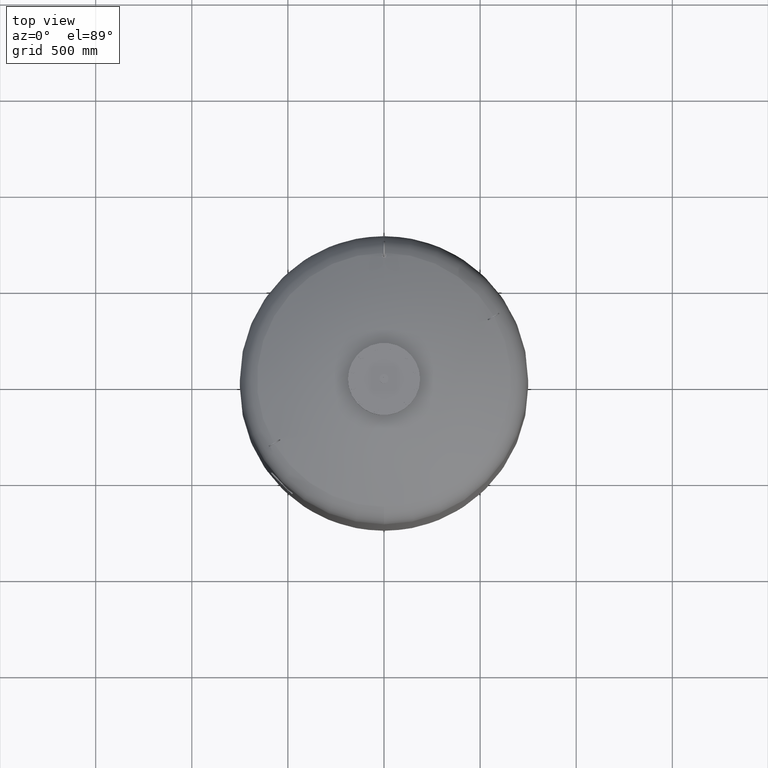
[diagram: clean part render]
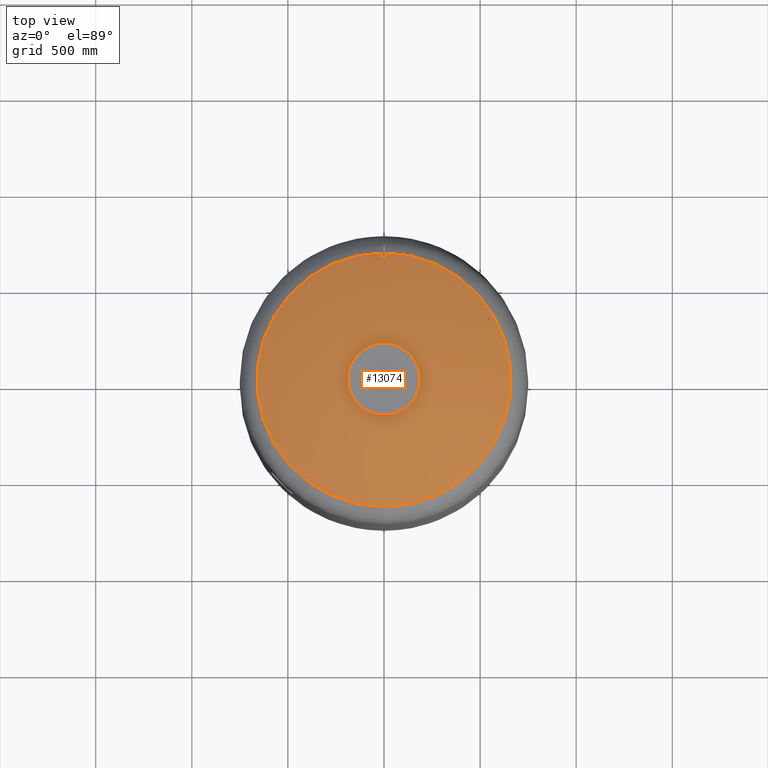
[diagram: same view with one face highlighted and labeled with its STEP entity id]
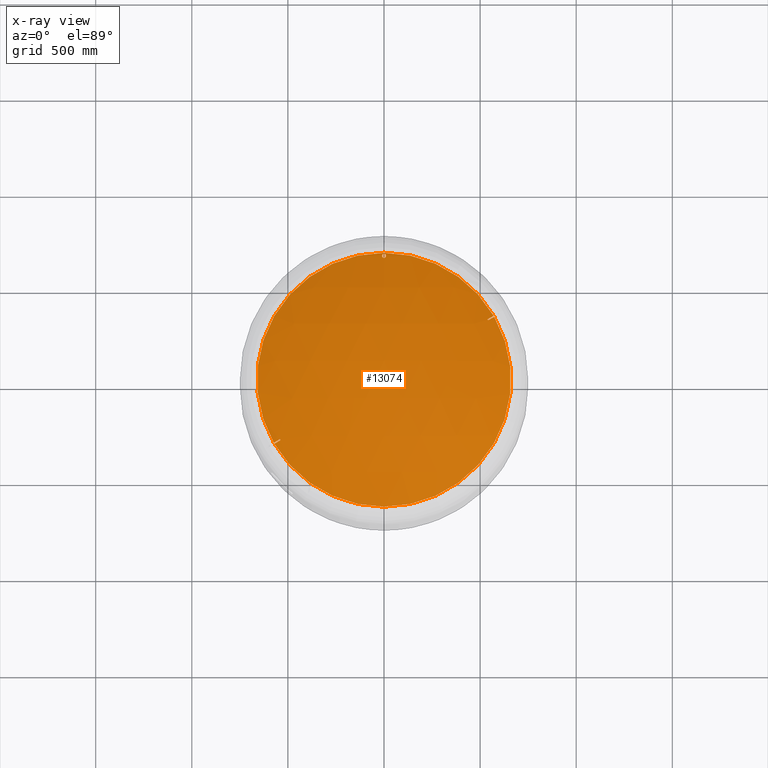
[diagram: x-ray of the same camera — body ghosted, the highlighted face saturated]
A machine part, top view. The second image highlights one B-rep face of the part: STEP entity #13074.
The next image is the same camera in x-ray: the body ghosted, the highlighted face saturated — about 0% of this face is hidden behind the body in this view.
In plain terms, the highlighted spherical surface has radius 1509 mm.
Its self-contained STEP definition (entity closure, byte-faithful):
#12338=CARTESIAN_POINT('',(2.782883E-014,-660.606666666666800,2822.716562866229200));
#12339=VERTEX_POINT('',#12338);
#12355=CARTESIAN_POINT('',(1.087271E-013,660.606666666666800,2822.716562866229200));
#12356=VERTEX_POINT('',#12355);
#12364=CARTESIAN_POINT('',(570.596255916202270,332.898003566943030,2822.716562866229200));
#12365=VERTEX_POINT('',#12364);
#12366=CARTESIAN_POINT('',(7.530601E-015,-2.797401E-014,2822.716562866229200));
#12367=DIRECTION('',(0.0,0.0,-1.0));
#12368=DIRECTION('',(1.0,0.0,0.0));
#12369=AXIS2_PLACEMENT_3D('',#12366,#12367,#12368);
#12370=CIRCLE('',#12369,660.606666666666800);
#12371=EDGE_CURVE('',#12356,#12365,#12370,.T.);
#12400=CARTESIAN_POINT('',(573.596255916202270,327.701851144236400,2822.716562866229200));
#12401=VERTEX_POINT('',#12400);
#12415=CARTESIAN_POINT('',(7.530601E-015,-2.797401E-014,2822.716562866229200));
#12416=DIRECTION('',(0.0,0.0,-1.0));
#12417=DIRECTION('',(1.0,0.0,0.0));
#12418=AXIS2_PLACEMENT_3D('',#12415,#12416,#12417);
#12419=CIRCLE('',#12418,660.606666666666800);
#12420=EDGE_CURVE('',#12401,#12339,#12419,.T.);
#12474=CARTESIAN_POINT('',(-1.897978E-015,655.650000000000090,2825.118860696149600));
#12475=VERTEX_POINT('',#12474);
#12491=CARTESIAN_POINT('',(-1.240563E-015,634.350000000000140,2835.189934778954900));
#12492=VERTEX_POINT('',#12491);
#12499=CARTESIAN_POINT('',(-1.897978E-015,655.650000000000090,2825.118860696149600));
#12500=CARTESIAN_POINT('',(0.665404330812075,655.650000000000090,2825.118860696149600));
#12501=CARTESIAN_POINT('',(1.351005238531910,655.586586472611200,2825.148956099280000));
#12502=CARTESIAN_POINT('',(2.709152380359530,655.322864024945490,2825.274102903181800));
#12503=CARTESIAN_POINT('',(3.381714256279836,655.122620744017920,2825.369122863290600));
#12504=CARTESIAN_POINT('',(4.665906970622906,654.598580857008300,2825.617749092760700));
#12505=CARTESIAN_POINT('',(5.278739801402161,654.274335051525900,2825.771567636845200));
#12506=CARTESIAN_POINT('',(6.407722563082133,653.533432843510700,2826.122965029964700));
#12507=CARTESIAN_POINT('',(6.923874650766102,653.116778685511690,2826.320541682071500));
#12508=CARTESIAN_POINT('',(7.889290439644320,652.188962456306400,2826.760401335867800));
#12509=CARTESIAN_POINT('',(8.360621428439794,651.637013011092450,2827.022009760501500));
#12510=CARTESIAN_POINT('',(9.184218306884119,650.440594312454890,2827.588884786357100));
#12511=CARTESIAN_POINT('',(9.536575262430031,649.796175836176530,2827.894126243167600));
#12512=CARTESIAN_POINT('',(10.099226215268940,648.457629366782610,2828.527921196685800));
#12513=CARTESIAN_POINT('',(10.309904511361037,647.762627273321300,2828.856887882093800));
#12514=CARTESIAN_POINT('',(10.585321999158966,646.370108996278190,2829.515766474685300));
#12515=CARTESIAN_POINT('',(10.650000000000000,645.672582847176160,2829.845682896962900));
#12516=CARTESIAN_POINT('',(10.650000000000000,644.327773783445990,2830.481531696811500));
#12517=CARTESIAN_POINT('',(10.585389715432822,643.630518005042630,2830.811092215923500));
#12518=CARTESIAN_POINT('',(10.310158197774065,642.238371078161090,2831.468852435417800));
#12519=CARTESIAN_POINT('',(10.099596713855746,641.543470358319950,2831.797056877939700));
#12520=CARTESIAN_POINT('',(9.537165322407807,640.205009979753980,2832.429000886638700));
#12521=CARTESIAN_POINT('',(9.184909130526176,639.560574217313730,2832.733154802825100));
#12522=CARTESIAN_POINT('',(8.361484811050532,638.364076526992110,2833.297699280516600));
#12523=CARTESIAN_POINT('',(7.890225855511259,637.812066143510040,2833.558066601965000));
#12524=CARTESIAN_POINT('',(6.924750618118365,636.883947430329950,2833.995733923613400));
#12525=CARTESIAN_POINT('',(6.408446699130911,636.467094997367670,2834.192258225785300));
#12526=CARTESIAN_POINT('',(5.279175018932195,635.725897994843080,2834.541632396409100));
#12527=CARTESIAN_POINT('',(4.666205770247577,635.401555709393960,2834.694482302683800));
#12528=CARTESIAN_POINT('',(3.381800145527401,634.877399673759780,2834.941469592940800));
#12529=CARTESIAN_POINT('',(2.709163715388115,634.677136677483300,2835.035819489551600));
#12530=CARTESIAN_POINT('',(1.350949437001924,634.413404190588380,2835.160067323583900));
#12531=CARTESIAN_POINT('',(0.665356121600540,634.350000000000140,2835.189934778954900));
#12532=CARTESIAN_POINT('',(-1.240563E-015,634.350000000000140,2835.189934778954900));
#12533=B_SPLINE_CURVE_WITH_KNOTS('',3,(#12499,#12500,#12501,#12502,#12503,#12504,#12505,#12506,#12507,#12508,#12509,#12510,#12511,#12512,#12513,#12514,#12515,#12516,#12517,#12518,#12519,#12520,#12521,#12522,#12523,#12524,#12525,#12526,#12527,#12528,#12529,#12530,#12531,#12532),.UNSPECIFIED.,.F.,.U.,(4,2,2,2,2,2,2,2,2,2,2,2,2,2,2,2,4),(0.0,1.996212992436229,3.992425984872458,5.988638977308687,7.984851969744916,10.216773795484329,12.448695621223742,14.680617446963154,16.912539272702567,19.143277643240921,21.374016013779276,23.604754384317630,25.835492754855984,27.831561119657607,29.827629484459230,31.823697849260853,33.819766214062476),.UNSPECIFIED.);
#12534=EDGE_CURVE('',#12475,#12492,#12533,.T.);
#12545=CARTESIAN_POINT('',(-1.240563E-015,634.350000000000140,2835.189934778954900));
#12546=CARTESIAN_POINT('',(-0.665356121600537,634.350000000000140,2835.189934778954900));
#12547=CARTESIAN_POINT('',(-1.350949437001913,634.413404190588380,2835.160067323583900));
#12548=CARTESIAN_POINT('',(-2.709163715388091,634.677136677483300,2835.035819489551600));
#12549=CARTESIAN_POINT('',(-3.381800145527372,634.877399673759780,2834.941469592940800));
#12550=CARTESIAN_POINT('',(-4.666205770247546,635.401555709393960,2834.694482302683800));
#12551=CARTESIAN_POINT('',(-5.279175018932203,635.725897994843080,2834.541632396409100));
#12552=CARTESIAN_POINT('',(-6.408446699130908,636.467094997367670,2834.192258225785700));
#12553=CARTESIAN_POINT('',(-6.924750618118371,636.883947430329950,2833.995733923613400));
#12554=CARTESIAN_POINT('',(-7.890225855511268,637.812066143510040,2833.558066601965000));
#12555=CARTESIAN_POINT('',(-8.361484811050458,638.364076526991990,2833.297699280516600));
#12556=CARTESIAN_POINT('',(-9.184909130526131,639.560574217313620,2832.733154802825100));
#12557=CARTESIAN_POINT('',(-9.537165322407807,640.205009979753980,2832.429000886638700));
#12558=CARTESIAN_POINT('',(-10.099596713855753,641.543470358319950,2831.797056877939700));
#12559=CARTESIAN_POINT('',(-10.310158197774072,642.238371078161090,2831.468852435417800));
#12560=CARTESIAN_POINT('',(-10.585389715432829,643.630518005042630,2830.811092215923500));
#12561=CARTESIAN_POINT('',(-10.650000000000004,644.327773783445990,2830.481531696811500));
#12562=CARTESIAN_POINT('',(-10.650000000000004,645.672582847176160,2829.845682896962900));
#12563=CARTESIAN_POINT('',(-10.585321999158971,646.370108996278190,2829.515766474685300));
#12564=CARTESIAN_POINT('',(-10.309904511361040,647.762627273321300,2828.856887882093800));
#12565=CARTESIAN_POINT('',(-10.099226215268944,648.457629366782610,2828.527921196685800));
#12566=CARTESIAN_POINT('',(-9.536575262430034,649.796175836176530,2827.894126243167600));
#12567=CARTESIAN_POINT('',(-9.184218306884123,650.440594312454890,2827.588884786357100));
#12568=CARTESIAN_POINT('',(-8.360621428439798,651.637013011092450,2827.022009760501500));
#12569=CARTESIAN_POINT('',(-7.889290439644324,652.188962456306400,2826.760401335867800));
#12570=CARTESIAN_POINT('',(-6.923874650766106,653.116778685511690,2826.320541682071500));
#12571=CARTESIAN_POINT('',(-6.407722563082133,653.533432843510700,2826.122965029964700));
#12572=CARTESIAN_POINT('',(-5.278739801402160,654.274335051525900,2825.771567636845200));
#12573=CARTESIAN_POINT('',(-4.665906970622908,654.598580857008300,2825.617749092760700));
#12574=CARTESIAN_POINT('',(-3.381714256279838,655.122620744017920,2825.369122863290600));
#12575=CARTESIAN_POINT('',(-2.709152380359532,655.322864024945490,2825.274102903181800));
#12576=CARTESIAN_POINT('',(-1.351005238531913,655.586586472611200,2825.148956099280000));
#12577=CARTESIAN_POINT('',(-0.665404330812078,655.650000000000090,2825.118860696149600));
#12578=CARTESIAN_POINT('',(-1.897978E-015,655.650000000000090,2825.118860696149600));
#12579=B_SPLINE_CURVE_WITH_KNOTS('',3,(#12545,#12546,#12547,#12548,#12549,#12550,#12551,#12552,#12553,#12554,#12555,#12556,#12557,#12558,#12559,#12560,#12561,#12562,#12563,#12564,#12565,#12566,#12567,#12568,#12569,#12570,#12571,#12572,#12573,#12574,#12575,#12576,#12577,#12578),.UNSPECIFIED.,.F.,.U.,(4,2,2,2,2,2,2,2,2,2,2,2,2,2,2,2,4),(33.819766214062476,35.815834578864084,37.811902943665700,39.807971308467316,41.804039673268932,44.034778043807307,46.265516414345683,48.496254784884059,50.726993155422434,52.958914981161847,55.190836806901260,57.422758632640672,59.654680458380085,61.650893450816312,63.647106443252540,65.643319435688767,67.639532428124994),.UNSPECIFIED.);
#12580=EDGE_CURVE('',#12492,#12475,#12579,.T.);
#12608=CARTESIAN_POINT('',(-570.596255916196580,-332.898003566952920,2822.716562866229700));
#12609=VERTEX_POINT('',#12608);
#12625=CARTESIAN_POINT('',(-539.004547741172360,-314.658522347942950,2839.879584180558100));
#12626=VERTEX_POINT('',#12625);
#12627=CARTESIAN_POINT('',(1.500000000005994,-2.598076211363742,1466.0));
#12628=DIRECTION('',(0.499999999999994,-0.866025403784442,0.0));
#12629=DIRECTION('',(0.0,0.0,1.0));
#12630=AXIS2_PLACEMENT_3D('',#12627,#12628,#12629);
#12631=CIRCLE('',#12630,1508.997017889697400);
#12632=EDGE_CURVE('',#12626,#12609,#12631,.T.);
#12675=CARTESIAN_POINT('',(-542.004547741172470,-309.462369925236320,2839.879584180558100));
#12676=VERTEX_POINT('',#12675);
#12677=CARTESIAN_POINT('',(-195.850324208316520,-113.074237402545550,1403.348481320245600));
#12678=DIRECTION('',(0.834590199910602,0.481850876581402,0.266981143436977));
#12679=DIRECTION('',(0.0,0.484652475916135,-0.874706795211036));
#12680=AXIS2_PLACEMENT_3D('',#12677,#12678,#12679);
#12681=CIRCLE('',#12680,1490.641692208577100);
#12682=EDGE_CURVE('',#12676,#12626,#12681,.T.);
#12760=CARTESIAN_POINT('',(-573.596255916196580,-327.701851144246290,2822.716562866229700));
#12761=VERTEX_POINT('',#12760);
#12784=CARTESIAN_POINT('',(-1.499999999993967,2.598076211342912,1466.0));
#12785=DIRECTION('',(-0.499999999999994,0.866025403784442,0.0));
#12786=DIRECTION('',(0.0,0.0,-1.0));
#12787=AXIS2_PLACEMENT_3D('',#12784,#12785,#12786);
#12788=CIRCLE('',#12787,1508.997017889697400);
#12789=EDGE_CURVE('',#12761,#12676,#12788,.T.);
#12816=CARTESIAN_POINT('',(7.530601E-015,-2.797401E-014,2822.716562866229200));
#12817=DIRECTION('',(0.0,0.0,-1.0));
#12818=DIRECTION('',(1.0,0.0,0.0));
#12819=AXIS2_PLACEMENT_3D('',#12816,#12817,#12818);
#12820=CIRCLE('',#12819,660.606666666666800);
#12821=EDGE_CURVE('',#12339,#12609,#12820,.T.);
#12826=CARTESIAN_POINT('',(7.530601E-015,-2.797401E-014,2822.716562866229200));
#12827=DIRECTION('',(0.0,0.0,-1.0));
#12828=DIRECTION('',(1.0,0.0,0.0));
#12829=AXIS2_PLACEMENT_3D('',#12826,#12827,#12828);
#12830=CIRCLE('',#12829,660.606666666666800);
#12831=EDGE_CURVE('',#12761,#12356,#12830,.T.);
#12851=CARTESIAN_POINT('',(539.004547741178380,314.658522347932720,2839.879584180558100));
#12852=VERTEX_POINT('',#12851);
#12853=CARTESIAN_POINT('',(-1.499999999993948,2.598076211342792,1466.0));
#12854=DIRECTION('',(-0.500000000000006,0.866025403784435,0.0));
#12855=DIRECTION('',(0.0,0.0,-1.0));
#12856=AXIS2_PLACEMENT_3D('',#12853,#12854,#12855);
#12857=CIRCLE('',#12856,1508.997017889697400);
#12858=EDGE_CURVE('',#12852,#12365,#12857,.T.);
#12901=CARTESIAN_POINT('',(542.004547741178380,309.462369925225970,2839.879584180558100));
#12902=VERTEX_POINT('',#12901);
#12903=CARTESIAN_POINT('',(195.850324208315390,113.074237402547780,1403.348481320245400));
#12904=DIRECTION('',(-0.834590199910595,-0.481850876581413,0.266981143436977));
#12905=DIRECTION('',(0.0,0.484652475916126,0.874706795211040));
#12906=AXIS2_PLACEMENT_3D('',#12903,#12904,#12905);
#12907=CIRCLE('',#12906,1490.641692208577100);
#12908=EDGE_CURVE('',#12902,#12852,#12907,.T.);
#13039=CARTESIAN_POINT('',(1.500000000006090,-2.598076211363818,1466.0));
#13040=DIRECTION('',(0.500000000000006,-0.866025403784435,0.0));
#13041=DIRECTION('',(0.0,0.0,1.0));
#13042=AXIS2_PLACEMENT_3D('',#13039,#13040,#13041);
#13043=CIRCLE('',#13042,1508.997017889697400);
#13044=EDGE_CURVE('',#12401,#12902,#13043,.T.);
#13053=CARTESIAN_POINT('',(1.607048E-013,-2.771988E-013,1466.0));
#13054=DIRECTION('',(0.0,-1.0,0.0));
#13055=DIRECTION('',(-1.0,0.0,0.0));
#13056=AXIS2_PLACEMENT_3D('',#13053,#13054,#13055);
#13057=SPHERICAL_SURFACE('',#13056,1509.0);
#13058=ORIENTED_EDGE('',*,*,#12534,.T.);
#13059=ORIENTED_EDGE('',*,*,#12580,.T.);
#13060=EDGE_LOOP('',(#13058,#13059));
#13061=FACE_OUTER_BOUND('',#13060,.T.);
#13062=ORIENTED_EDGE('',*,*,#12632,.T.);
#13063=ORIENTED_EDGE('',*,*,#12821,.F.);
#13064=ORIENTED_EDGE('',*,*,#12420,.F.);
#13065=ORIENTED_EDGE('',*,*,#13044,.T.);
#13066=ORIENTED_EDGE('',*,*,#12908,.T.);
#13067=ORIENTED_EDGE('',*,*,#12858,.T.);
#13068=ORIENTED_EDGE('',*,*,#12371,.F.);
#13069=ORIENTED_EDGE('',*,*,#12831,.F.);
#13070=ORIENTED_EDGE('',*,*,#12789,.T.);
#13071=ORIENTED_EDGE('',*,*,#12682,.T.);
#13072=EDGE_LOOP('',(#13062,#13063,#13064,#13065,#13066,#13067,#13068,#13069,#13070,#13071));
#13073=FACE_BOUND('',#13072,.T.);
#13074=ADVANCED_FACE('',(#13061,#13073),#13057,.T.);